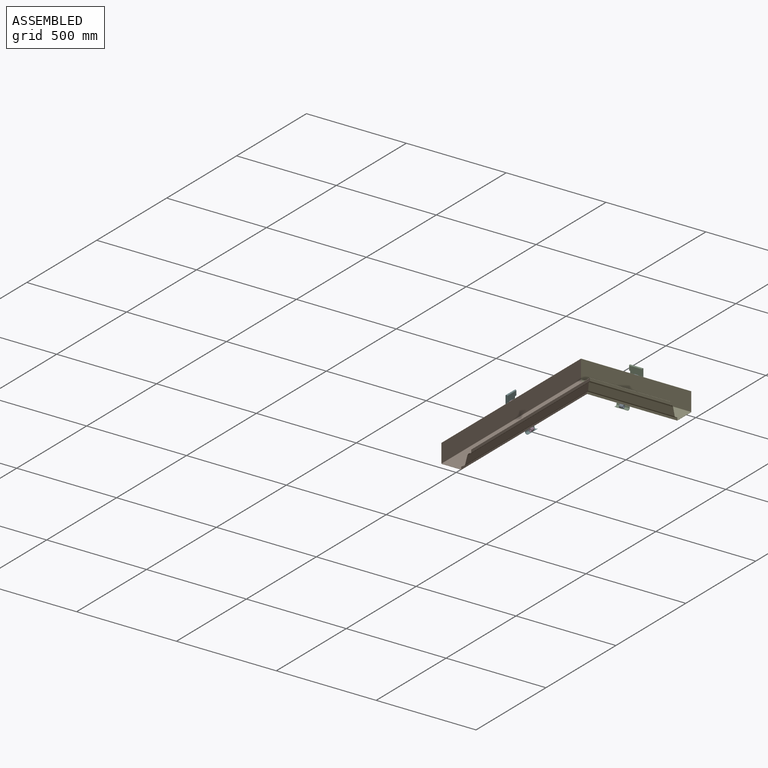
[diagram: assembled view]
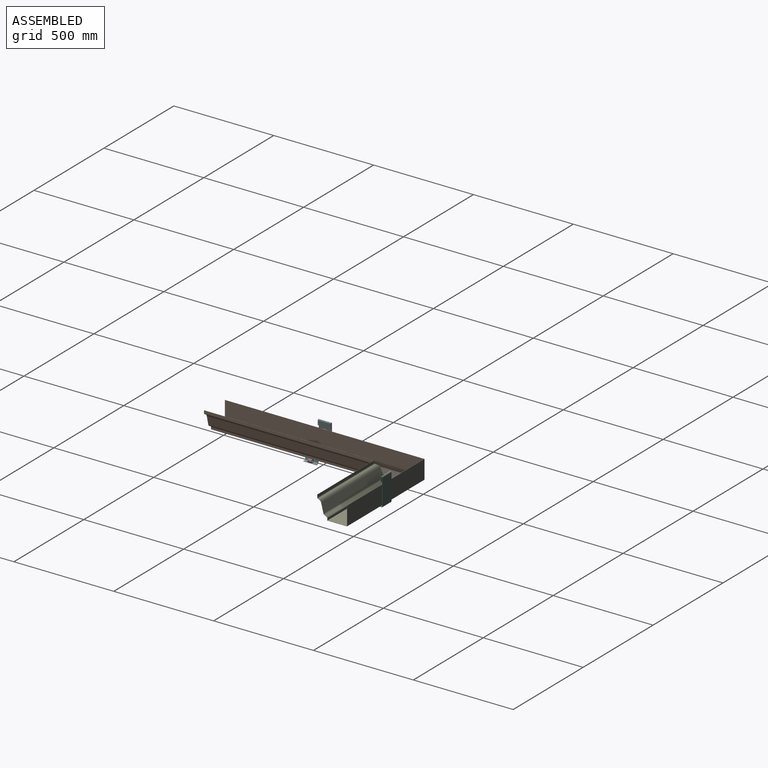
[diagram: assembled view, second angle]
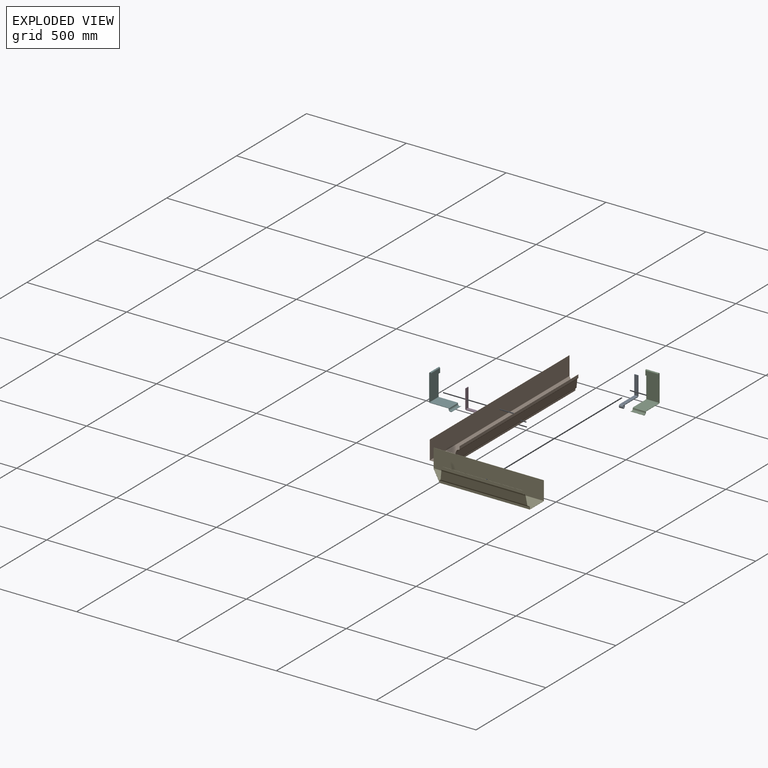
[diagram: exploded view]
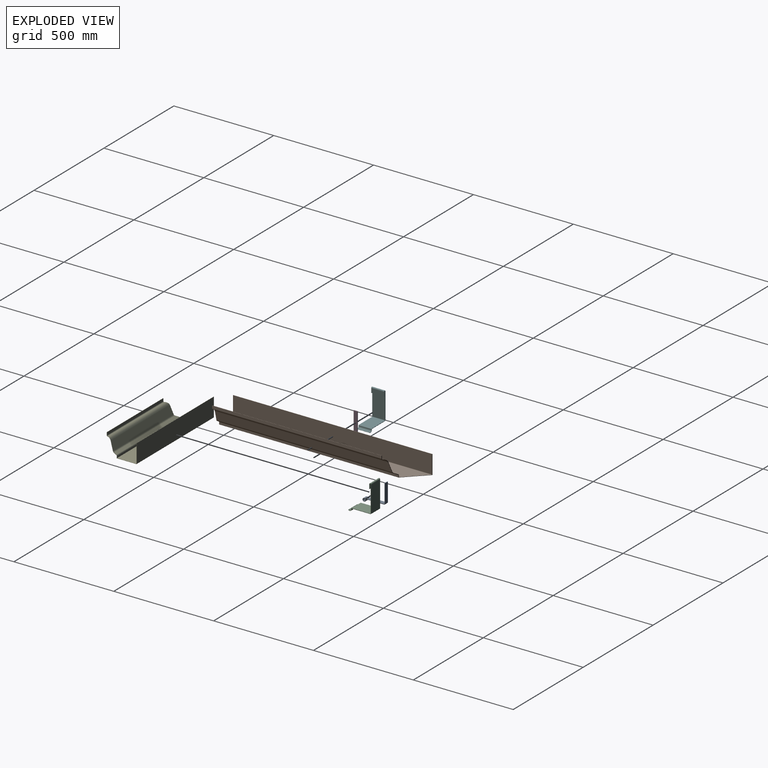
[diagram: exploded view, second angle]
ASSEMBLY  parts=6 mates=4
PART A: 15 faces, bbox 113.4x19x111.4 mm
  f0: plane 19x4.8mm, normal (-1,0,0), area 91.2mm2, adj f1,f11,f12,f13
  f1: plane 19x3.2mm, normal (0,0,-1), area 60.8mm2, adj f0,f2,f12,f13
  f2: plane 19x4.8mm, normal (1,0,0), area 91.2mm2, adj f1,f3,f12,f13
  f3: cylinder r=8.2mm len=19mm, axis (0,1,0), area 734.2mm2, adj f2,f4,f12,f13
  f4: plane 100x19mm, normal (0,0,-1), area 1880.4mm2, adj f3,f5,f12,f13,f14
  f5: cylinder r=2mm len=19mm, axis (0,1,0), area 59.7mm2, adj f4,f6,f12,f13
  f6: plane 92.98x19mm, normal (-1,0,0), area 1766.6mm2, adj f5,f7,f12,f13
  f7: plane 19x3.2mm, normal (0,0,-1), area 60.8mm2, adj f6,f8,f12,f13
  f8: plane 92.98x19mm, normal (1,0,0), area 1766.6mm2, adj f7,f9,f12,f13
  f9: cylinder r=5.2mm len=19mm, axis (0,1,0), area 155.2mm2, adj f8,f10,f12,f13
  f10: plane 100x19mm, normal (0,0,1), area 1880.4mm2, adj f9,f11,f12,f13,f14
  f11: cylinder r=5mm len=19mm, axis (0,1,0), area 447.7mm2, adj f0,f10,f12,f13
  f12: plane 113.4x111.38mm, normal (0,-1,0), area 750.5mm2, adj f0,f1,f2,f3,f4,f5,f6,f7
  f13: plane 113.4x111.38mm, normal (0,1,0), area 750.5mm2, adj f0,f1,f2,f3,f4,f5,f6,f7
  f14: cylinder r=2.5mm len=5mm, axis (0,0,-1), area 50.3mm2, adj f4,f10
PART B: 27 faces, bbox 150x998.5x105 mm
  f0: plane 849.46x1mm, normal (0,0,1), area 849mm2, adj f1,f23,f24,f25
  f1: plane 849.46x13.63mm, normal (-1,0,0), area 11573.9mm2, adj f0,f2,f24,f25
  f2: cylinder r=4mm len=851.81mm, axis (0,1,0), area 3896.6mm2, adj f1,f3,f24,f25
  f3: cylinder r=21mm len=868.81mm, axis (0,1,0), area 21036.8mm2, adj f2,f4,f24,f25
  f4: plane 880.04x44.29mm, normal (-0.97,0,0.25), area 39956.2mm2, adj f3,f5,f24,f25
  f5: cylinder r=8.68mm len=884.04mm, axis (0,1,0), area 6042.8mm2, adj f4,f6,f24,f25
  f6: plane 896.51x12.46mm, normal (-0.51,0,0.86), area 12883.6mm2, adj f5,f7,f24,f25
  f7: cylinder r=6mm len=899.46mm, axis (0,1,0), area 5593.4mm2, adj f6,f8,f24,f25
  f8: plane 899.46x9mm, normal (-1,0,0), area 8095.1mm2, adj f7,f9,f24,f25
  f9: plane 996.46x97mm, normal (0,0,1), area 91932.2mm2, adj f8,f10,f24,f25,f26
  f10: cylinder r=1mm len=997.46mm, axis (0,1,0), area 1566.2mm2, adj f9,f11,f24,f25
  f11: plane 997.46x93mm, normal (1,0,0), area 92763.5mm2, adj f10,f12,f24,f25
  f12: plane 998.46x1mm, normal (0,0,1), area 998mm2, adj f11,f13,f24,f25
  f13: plane 998.46x93mm, normal (-1,0,0), area 92856.5mm2, adj f12,f14,f24,f25
  f14: cylinder r=2mm len=998.46mm, axis (0,1,0), area 3134.5mm2, adj f13,f15,f24,f25
  f15: plane 996.46x98mm, normal (0,0,-1), area 92831.2mm2, adj f14,f16,f24,f25,f26
  f16: plane 898.46x10mm, normal (1,0,0), area 8984.6mm2, adj f15,f17,f24,f25
  f17: cylinder r=5mm len=898.46mm, axis (0,1,0), area 4656.8mm2, adj f16,f18,f24,f25
  f18: plane 896x12.46mm, normal (0.51,0,-0.86), area 12876.3mm2, adj f17,f19,f24,f25
  f19: cylinder r=9.68mm len=883.54mm, axis (0,1,0), area 6732.8mm2, adj f18,f20,f24,f25
  f20: plane 879.07x44.29mm, normal (0.97,0,-0.25), area 39911.9mm2, adj f19,f21,f24,f25
  f21: cylinder r=20mm len=867.84mm, axis (0,1,0), area 20126.4mm2, adj f20,f22,f24,f25
  f22: cylinder r=5mm len=851.53mm, axis (0,1,0), area 5020.1mm2, adj f21,f23,f24,f25
  f23: plane 848.46x13.59mm, normal (1,0,0), area 11527mm2, adj f0,f22,f24,f25
  f24: plane 150x105mm, normal (0,-1,0), area 318.2mm2, adj f0,f1,f2,f3,f4,f5,f6,f7
  f25: plane 150x150mm, normal (0.71,0.71,0), area 450mm2, adj f0,f1,f2,f3,f4,f5,f6,f7
  f26: cylinder r=2.5mm len=5mm, axis (0,0,-1), area 15.7mm2, adj f9,f15
PART C: 20 faces, bbox 114.9x65x152 mm
  f0: plane 65x1.7mm, normal (-1,0,0), area 110.5mm2, adj f1,f17,f18,f19
  f1: cylinder r=3mm len=65mm, axis (0,1,0), area 306.3mm2, adj f0,f2,f18,f19
  f2: plane 93x65mm, normal (0,0,-1), area 6045mm2, adj f1,f3,f18,f19
  f3: cylinder r=1mm len=65mm, axis (0,1,0), area 102.1mm2, adj f2,f4,f18,f19
  f4: plane 131.3x65mm, normal (-1,0,0), area 8534.5mm2, adj f3,f5,f18,f19
  f5: cylinder r=2.5mm len=65mm, axis (0,1,0), area 510.5mm2, adj f4,f6,f18,f19
  f6: plane 65x21.5mm, normal (1,0,0), area 1397.5mm2, adj f5,f7,f18,f19
  f7: plane 65x2mm, normal (0,0,1), area 130mm2, adj f6,f8,f18,f19
  f8: plane 65x21.5mm, normal (-1,0,0), area 1397.5mm2, adj f7,f9,f18,f19
  f9: cylinder r=4.5mm len=65mm, axis (0,1,0), area 918.9mm2, adj f8,f10,f18,f19
  f10: plane 131.3x65mm, normal (1,0,0), area 8534.5mm2, adj f9,f11,f18,f19
  f11: cylinder r=3mm len=65mm, axis (0,1,0), area 306.3mm2, adj f10,f12,f18,f19
  f12: plane 93x65mm, normal (0,0,1), area 6045mm2, adj f11,f13,f18,f19
  f13: cylinder r=1mm len=65mm, axis (0,1,0), area 102.1mm2, adj f12,f14,f18,f19
  f14: plane 65x1.7mm, normal (1,0,0), area 110.5mm2, adj f13,f15,f18,f19
  f15: cylinder r=10.5mm len=65mm, axis (0,1,0), area 1608.1mm2, adj f14,f16,f18,f19
  f16: plane 65x1.41mm, normal (-0.71,0,-0.71), area 130mm2, adj f15,f17,f18,f19
  f17: cylinder r=8.5mm len=65mm, axis (0,1,0), area 1301.8mm2, adj f0,f16,f18,f19
  f18: plane 152x114.92mm, normal (0,-1,0), area 574.3mm2, adj f0,f1,f2,f3,f4,f5,f6,f7
  f19: plane 152x114.92mm, normal (0,1,0), area 574.3mm2, adj f0,f1,f2,f3,f4,f5,f6,f7
PART D: same geometry as A
PART E: 28 faces, bbox 150x552x105 mm
  f0: plane 550.05x98mm, normal (0,0,-1), area 49063.4mm2, adj f15,f16,f24,f25,f26,f27
  f1: plane 403.05x1mm, normal (0,0,1), area 402.5mm2, adj f2,f23,f24,f26
  f2: plane 403.05x13.63mm, normal (-1,0,0), area 5491.5mm2, adj f1,f3,f24,f26
  f3: cylinder r=4mm len=405.4mm, axis (0,1,0), area 1850.8mm2, adj f2,f4,f24,f26
  f4: cylinder r=21mm len=422.4mm, axis (0,1,0), area 10140.5mm2, adj f3,f5,f24,f26
  f5: plane 433.63x44.29mm, normal (-0.97,0,0.25), area 19557.9mm2, adj f4,f6,f24,f26
  f6: cylinder r=8.68mm len=437.63mm, axis (0,1,0), area 2983.2mm2, adj f5,f7,f24,f26
  f7: plane 450.1x12.46mm, normal (-0.51,0,0.86), area 6423.4mm2, adj f6,f8,f24,f26
  f8: cylinder r=6mm len=453.05mm, axis (0,1,0), area 2814.2mm2, adj f7,f9,f24,f26
  f9: plane 453.05x9mm, normal (-1,0,0), area 4077.4mm2, adj f8,f10,f24,f26
  f10: plane 550.05x97mm, normal (0,0,1), area 48610.8mm2, adj f9,f11,f24,f25,f26,f27
  f11: cylinder r=1mm len=551.05mm, axis (0,1,0), area 865mm2, adj f10,f12,f24,f26
  f12: plane 551.05x93mm, normal (1,0,0), area 51247.4mm2, adj f11,f13,f24,f26
  f13: plane 552.05x1mm, normal (0,0,1), area 551.5mm2, adj f12,f14,f24,f26
  f14: plane 552.05x93mm, normal (-1,0,0), area 51340.4mm2, adj f13,f15,f24,f26
  f15: cylinder r=2mm len=552.05mm, axis (0,1,0), area 1732mm2, adj f0,f14,f24,f26
  f16: plane 452.05x10mm, normal (1,0,0), area 4520.5mm2, adj f0,f17,f24,f26
  f17: cylinder r=5mm len=452.05mm, axis (0,1,0), area 2340.8mm2, adj f16,f18,f24,f26
  f18: plane 449.59x12.46mm, normal (0.51,0,-0.86), area 6416mm2, adj f17,f19,f24,f26
  f19: cylinder r=9.68mm len=437.13mm, axis (0,1,0), area 3320.9mm2, adj f18,f20,f24,f26
  f20: plane 432.66x44.29mm, normal (0.97,0,-0.25), area 19513.6mm2, adj f19,f21,f24,f26
  f21: cylinder r=20mm len=421.43mm, axis (0,1,0), area 9693.3mm2, adj f20,f22,f24,f26
  f22: cylinder r=5mm len=405.12mm, axis (0,1,0), area 2382.1mm2, adj f21,f23,f24,f26
  f23: plane 402.05x13.59mm, normal (1,0,0), area 5462.1mm2, adj f1,f22,f24,f26
  f24: plane 150x105mm, normal (0,1,0), area 318.2mm2, adj f0,f1,f2,f3,f4,f5,f6,f7
  f25: cylinder r=2.5mm len=5mm, axis (0,0,-1), area 15.7mm2, adj f0,f10
  f26: plane 150x150mm, normal (0.71,-0.71,0), area 450mm2, adj f0,f1,f2,f3,f4,f5,f6,f7
  f27: cylinder r=2.5mm len=5mm, axis (0,0,-1), area 15.7mm2, adj f0,f10
PART F: same geometry as C
PLACE A rot(axis=(-0.71,-0.71,0),180deg) t=(232.66,366.43,-125.32)mm
PLACE B t=(22.14,469.97,-64.64)mm
PLACE C rot(axis=(-0.71,-0.71,0),180deg) t=(255.66,382.06,-117.62)mm fixed
PLACE D rot(axis=(0,-1,0),180deg) t=(49.14,-21.3,-125.32)mm
PLACE E rot(axis=(0,0,-1),90deg) t=(531.93,393.43,-64.64)mm
PLACE F rot(axis=(0,-1,0),180deg) t=(33.51,1.7,-117.62)mm fixed
MATE fastened B.f13 <-> D.f6  axis (-1,0,0) through (-52.86,-30.8,-22.14)mm
MATE revolute D.f3 <-> F.f15  axis (0,1,0) through (49.14,-30.8,-125.32)mm
MATE fastened A.f6 <-> E.f14  axis (0,-1,0) through (223.16,468.43,-22.14)mm
MATE revolute A.f3 <-> C.f15  axis (1,0,0) through (223.16,366.43,-125.32)mm
